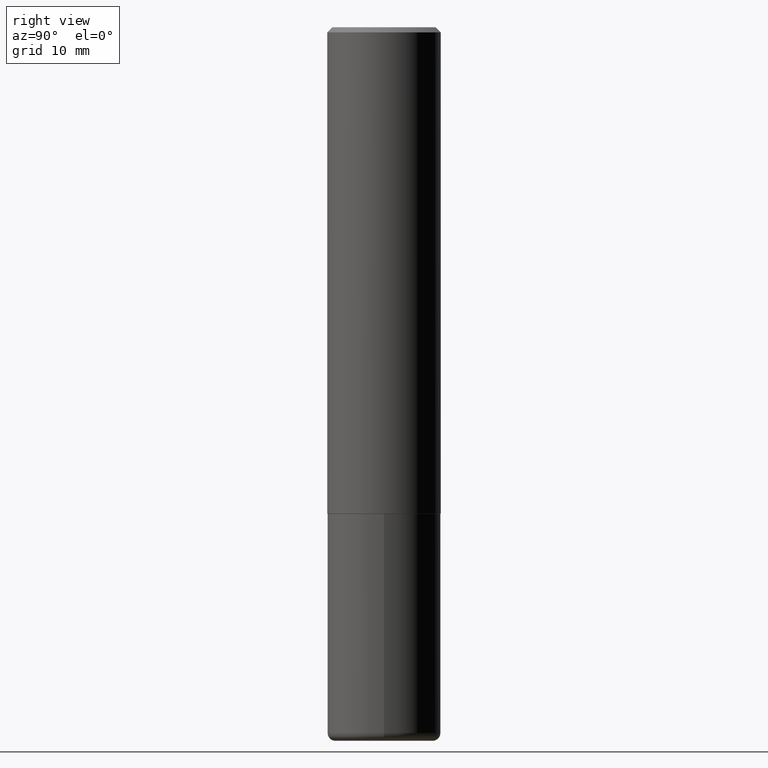
[diagram: clean part render]
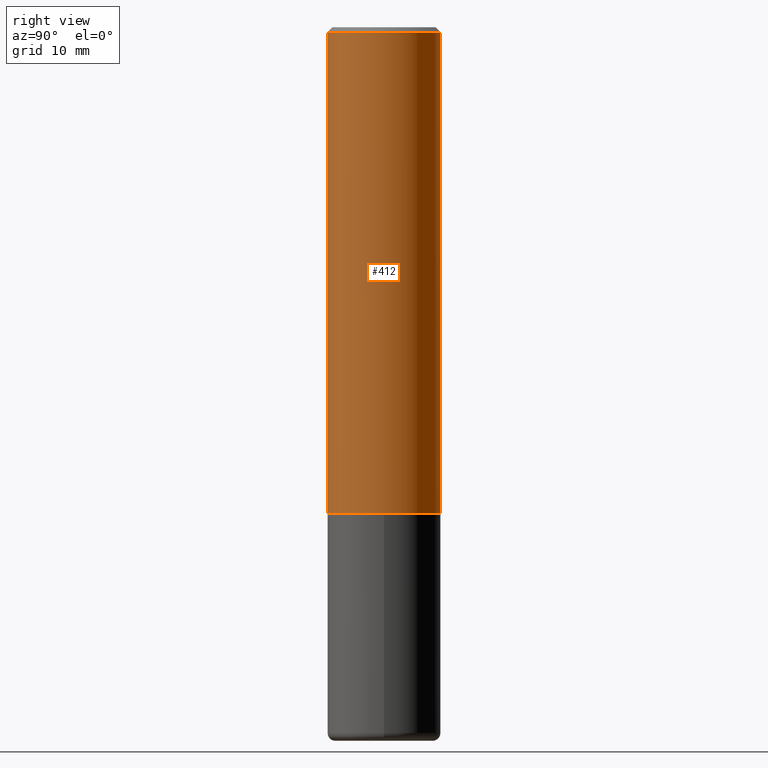
[diagram: same view with one face highlighted and labeled with its STEP entity id]
A machine part, right view. The second image highlights one B-rep face of the part: STEP entity #412.
In plain terms, the highlighted cylindrical surface (partial cylindrical patch) has radius 5.5563 mm, axis along (-0, 0, 1).
Its self-contained STEP definition (entity closure, byte-faithful):
#2 = CIRCLE ( 'NONE', #88, 0.2187499999999999445 ) ;
#7 = CARTESIAN_POINT ( 'NONE',  ( 1.554312234475242822E-15, 0.2187499999999936440, -1.874000000000000776 ) ) ;
#10 = ORIENTED_EDGE ( 'NONE', *, *, #353, .F. ) ;
#12 = CARTESIAN_POINT ( 'NONE',  ( 4.890065245181030653E-31, -6.984211957153406209E-17, -0.02000000000000009062 ) ) ;
#15 = FACE_OUTER_BOUND ( 'NONE', #230, .T. ) ;
#19 = CARTESIAN_POINT ( 'NONE',  ( -1.500733937012521346E-15, -0.2187500000000000278, -0.01999999999999932734 ) ) ;
#21 = VERTEX_POINT ( 'NONE', #19 ) ;
#28 = AXIS2_PLACEMENT_3D ( 'NONE', #257, #392, #299 ) ;
#29 = DIRECTION ( 'NONE',  ( -2.445032622590504256E-29, 3.492105978576687648E-15, 1.000000000000000000 ) ) ;
#47 = ORIENTED_EDGE ( 'NONE', *, *, #82, .T. ) ;
#50 = CYLINDRICAL_SURFACE ( 'NONE', #417, 0.2187500000000000833 ) ;
#70 = VERTEX_POINT ( 'NONE', #334 ) ;
#81 = VERTEX_POINT ( 'NONE', #90 ) ;
#82 = EDGE_CURVE ( 'NONE', #356, #70, #346, .T. ) ;
#88 = AXIS2_PLACEMENT_3D ( 'NONE', #12, #136, #396 ) ;
#90 = CARTESIAN_POINT ( 'NONE',  ( -1.527523085743826075E-15, -0.2187500000000067446, -1.873999999999999222 ) ) ;
#99 = CARTESIAN_POINT ( 'NONE',  ( -1.527523085743871237E-15, -0.2187500000000000833, 7.638981828136507804E-16 ) ) ;
#100 = VECTOR ( 'NONE', #29, 39.37007874015748143 ) ;
#109 = CIRCLE ( 'NONE', #28, 0.2187500000000001943 ) ;
#136 = DIRECTION ( 'NONE',  ( -2.445032622590504256E-29, 3.492105978576687648E-15, 1.000000000000000000 ) ) ;
#140 = EDGE_CURVE ( 'NONE', #81, #356, #109, .T. ) ;
#163 = CARTESIAN_POINT ( 'NONE',  ( 0.000000000000000000, 0.000000000000000000, 0.000000000000000000 ) ) ;
#209 = DIRECTION ( 'NONE',  ( -2.445032622590504256E-29, 3.492105978576687648E-15, 1.000000000000000000 ) ) ;
#230 = EDGE_LOOP ( 'NONE', ( #363, #47, #319, #10 ) ) ;
#252 = LINE ( 'NONE', #99, #409 ) ;
#257 = CARTESIAN_POINT ( 'NONE',  ( 4.581991134734604485E-29, -6.544206603852712761E-15, -1.874000000000000110 ) ) ;
#299 = DIRECTION ( 'NONE',  ( -6.982962677686265922E-15, -1.000000000000000000, 3.746534391310986401E-15 ) ) ;
#313 = CARTESIAN_POINT ( 'NONE',  ( 1.554312234475219551E-15, 0.2187500000000000833, -7.638981828136507804E-16 ) ) ;
#319 = ORIENTED_EDGE ( 'NONE', *, *, #339, .F. ) ;
#334 = CARTESIAN_POINT ( 'NONE',  ( 1.527523085743870843E-15, 0.2187499999999998890, -0.02000000000000085390 ) ) ;
#339 = EDGE_CURVE ( 'NONE', #21, #70, #2, .T. ) ;
#346 = LINE ( 'NONE', #313, #100 ) ;
#351 = DIRECTION ( 'NONE',  ( -2.445032622590504256E-29, 3.492105978576687648E-15, 1.000000000000000000 ) ) ;
#353 = EDGE_CURVE ( 'NONE', #81, #21, #252, .T. ) ;
#356 = VERTEX_POINT ( 'NONE', #7 ) ;
#362 = DIRECTION ( 'NONE',  ( -6.982962677686265922E-15, -1.000000000000000000, 3.492105978576688042E-15 ) ) ;
#363 = ORIENTED_EDGE ( 'NONE', *, *, #140, .T. ) ;
#392 = DIRECTION ( 'NONE',  ( -2.445032622590504256E-29, 3.492105978576687648E-15, 1.000000000000000000 ) ) ;
#396 = DIRECTION ( 'NONE',  ( -6.982962677686265922E-15, -1.000000000000000000, 3.492862791899308860E-15 ) ) ;
#409 = VECTOR ( 'NONE', #351, 39.37007874015748143 ) ;
#412 = ADVANCED_FACE ( 'NONE', ( #15 ), #50, .T. ) ;
#417 = AXIS2_PLACEMENT_3D ( 'NONE', #163, #209, #362 ) ;